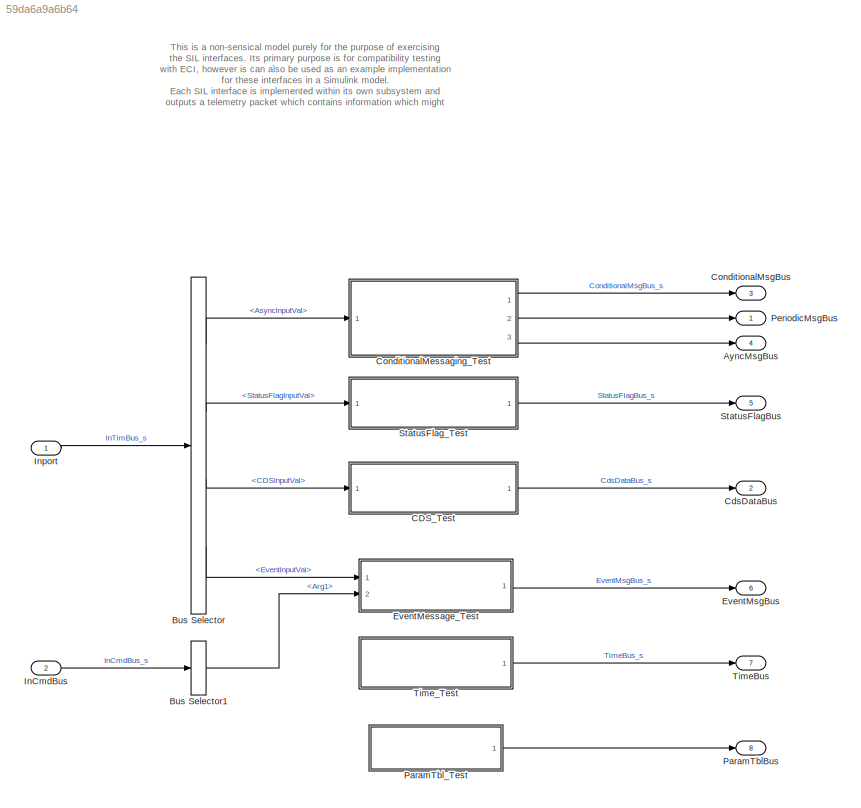
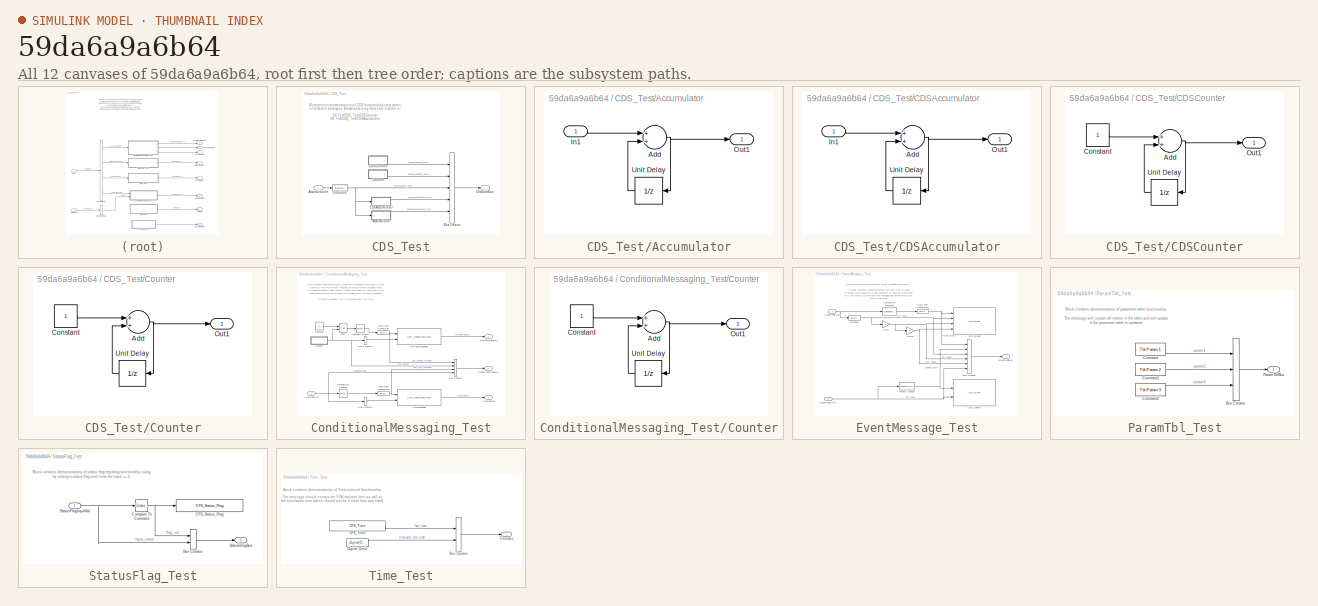
[diagram: thumbnail index - all 12 canvases of the model, root first then tree order]
MODEL slx_59da6a9a6b64
KIND model
CONFIG AbsTol = auto
CONFIG EnableMultiTasking = off
CONFIG FixedStep = SimStep
CONFIG MaxStep = auto
CONFIG MinStep = auto
CONFIG RelTol = 1e-3
CONFIG SampleTimeConstraint = Unconstrained
CONFIG Solver = FixedStepDiscrete
CONFIG SolverName = FixedStepDiscrete
CONFIG StartTime = 0.0
CONFIG StopTime = 10.0
BLOCK [Outport] AyncMsgBus
  IconDisplay = Port number
  OutDataTypeStr = Bus: AyncMsgBus
  Port = 4
BLOCK [BusSelector] Bus Selector
  OutputAsBus = off
  OutputSignals = AsyncInputVal,StatusFlagInputVal,CDSInputVal,EventInputVal
  Ports = [1, 4]
BLOCK [BusSelector] Bus Selector1
  OutputAsBus = off
  OutputSignals = Arg1
  Ports = [1, 1]
BLOCK [SubSystem] CDS_Test
  Ports = [1, 1]
  RequestExecContextInheritance = off
BLOCK [SubSystem] CDS_Test/Accumulator
  Ports = [1, 1]
  RequestExecContextInheritance = off
BLOCK [Sum] CDS_Test/Accumulator/Add
  InputSameDT = off
  OutDataTypeStr = Inherit: Inherit via internal rule
  Ports = [2, 1]
  SaturateOnIntegerOverflow = off
BLOCK [Inport] CDS_Test/Accumulator/In1
  IconDisplay = Port number
BLOCK [Outport] CDS_Test/Accumulator/Out1
  IconDisplay = Port number
BLOCK [UnitDelay] CDS_Test/Accumulator/Unit Delay
  InputProcessing = Elements as channels (sample based)
  SampleTime = -1
BLOCK [Inport] CDS_Test/AccumulatorIn
  IconDisplay = Port number
BLOCK [BusCreator] CDS_Test/Bus Creator
  DisplayOption = bar
  InheritFromInputs = on
  Inputs = 5
  NonVirtualBus = on
  OutDataTypeStr = Bus: CdsDataBus
  Ports = [5, 1]
BLOCK [SubSystem] CDS_Test/CDSAccumulator
  Ports = [1, 1]
  RequestExecContextInheritance = off
BLOCK [Sum] CDS_Test/CDSAccumulator/Add
  InputSameDT = off
  OutDataTypeStr = Inherit: Inherit via internal rule
  Ports = [2, 1]
  SaturateOnIntegerOverflow = off
BLOCK [Inport] CDS_Test/CDSAccumulator/In1
  IconDisplay = Port number
BLOCK [Outport] CDS_Test/CDSAccumulator/Out1
  IconDisplay = Port number
BLOCK [UnitDelay] CDS_Test/CDSAccumulator/Unit Delay
  InputProcessing = Elements as channels (sample based)
  SampleTime = -1
  StateMustResolveToSignalObject = on
  StateName = double_accumulator_state
BLOCK [SubSystem] CDS_Test/CDSCounter
  Ports = [0, 1]
  RequestExecContextInheritance = off
BLOCK [Sum] CDS_Test/CDSCounter/Add
  InputSameDT = off
  OutDataTypeStr = Inherit: Inherit via internal rule
  Ports = [2, 1]
  SaturateOnIntegerOverflow = off
BLOCK [Constant] CDS_Test/CDSCounter/Constant
  OutDataTypeStr = uint8
BLOCK [Outport] CDS_Test/CDSCounter/Out1
  IconDisplay = Port number
BLOCK [UnitDelay] CDS_Test/CDSCounter/Unit Delay
  InputProcessing = Elements as channels (sample based)
  SampleTime = -1
  StateMustResolveToSignalObject = on
  StateName = uint8_counter_state
BLOCK [Outport] CDS_Test/CdsDataBus
  IconDisplay = Port number
  OutDataTypeStr = Bus: CdsDataBus
BLOCK [SubSystem] CDS_Test/Counter
  Ports = [0, 1]
  RequestExecContextInheritance = off
BLOCK [Sum] CDS_Test/Counter/Add
  InputSameDT = off
  OutDataTypeStr = Inherit: Inherit via internal rule
  Ports = [2, 1]
  SaturateOnIntegerOverflow = off
BLOCK [Constant] CDS_Test/Counter/Constant
  OutDataTypeStr = uint8
BLOCK [Outport] CDS_Test/Counter/Out1
  IconDisplay = Port number
BLOCK [UnitDelay] CDS_Test/Counter/Unit Delay
  InputProcessing = Elements as channels (sample based)
  SampleTime = -1
BLOCK [DataTypeConversion] CDS_Test/toDouble
  OutDataTypeStr = double
  RndMeth = Floor
  SaturateOnIntegerOverflow = off
BLOCK [Outport] CdsDataBus
  IconDisplay = Port number
  OutDataTypeStr = Bus: CdsDataBus
  Port = 2
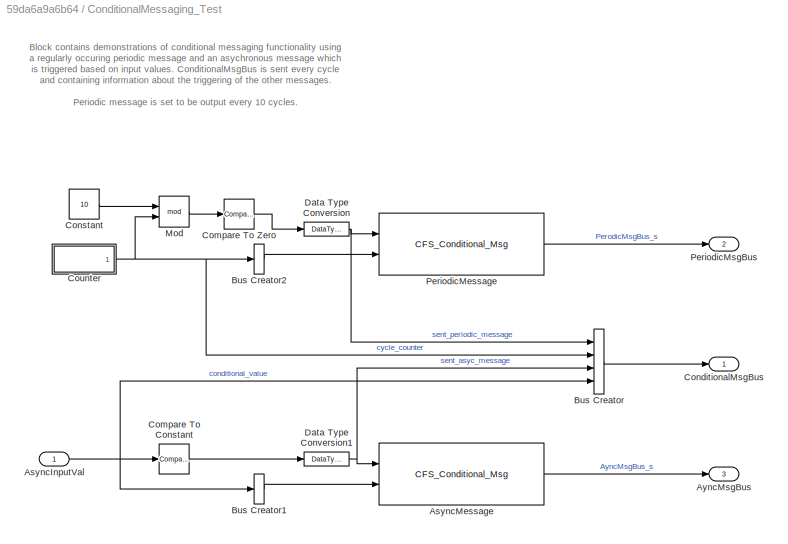
BLOCK [SubSystem] ConditionalMessaging_Test
  Ports = [1, 3]
  RequestExecContextInheritance = off
BLOCK [Inport] ConditionalMessaging_Test/AsyncInputVal
  IconDisplay = Port number
  OutDataTypeStr = uint8
BLOCK [Reference] ConditionalMessaging_Test/AsyncMessage  REF=cfs_library/CFS_Conditional_Msg
  Ports = [2, 1]
  SourceBlock = cfs_library/CFS_Conditional_Msg
  SourceProductName = CFS Blockset
  SourceType = SIL cFS Conditional Message
BLOCK [Outport] ConditionalMessaging_Test/AyncMsgBus
  IconDisplay = Port number
  Port = 3
BLOCK [BusCreator] ConditionalMessaging_Test/Bus Creator
  DisplayOption = bar
  InheritFromInputs = on
  Inputs = 4
  NonVirtualBus = on
  OutDataTypeStr = Bus: ConditionalMsgBus
  Ports = [4, 1]
BLOCK [BusCreator] ConditionalMessaging_Test/Bus Creator1
  DisplayOption = bar
  InheritFromInputs = on
  Inputs = 1
  NonVirtualBus = on
  OutDataTypeStr = Bus: AyncMsgBus
  Ports = [1, 1]
BLOCK [BusCreator] ConditionalMessaging_Test/Bus Creator2
  DisplayOption = bar
  InheritFromInputs = on
  Inputs = 1
  NonVirtualBus = on
  OutDataTypeStr = Bus: PeriodicMsgBus
  Ports = [1, 1]
BLOCK [Reference] ConditionalMessaging_Test/Compare To Constant  REF=simulink/Logic and Bit
Operations/Compare
To Constant
  Ports = [1, 1]
  SourceBlock = simulink/Logic and Bit\nOperations/Compare\nTo Constant
  SourceProductBaseCode = SL
  SourceProductName = Simulink
  SourceType = Compare To Constant
BLOCK [Reference] ConditionalMessaging_Test/Compare To Zero  REF=simulink/Logic and Bit
Operations/Compare
To Zero
  Ports = [1, 1]
  SourceBlock = simulink/Logic and Bit\nOperations/Compare\nTo Zero
  SourceProductBaseCode = SL
  SourceProductName = Simulink
  SourceType = Compare To Zero
BLOCK [Outport] ConditionalMessaging_Test/ConditionalMsgBus
  IconDisplay = Port number
BLOCK [Constant] ConditionalMessaging_Test/Constant
  OutDataTypeStr = uint8
  Value = 10
BLOCK [SubSystem] ConditionalMessaging_Test/Counter
  Ports = [0, 1]
  RequestExecContextInheritance = off
BLOCK [Sum] ConditionalMessaging_Test/Counter/Add
  InputSameDT = off
  OutDataTypeStr = Inherit: Inherit via internal rule
  Ports = [2, 1]
  SaturateOnIntegerOverflow = off
BLOCK [Constant] ConditionalMessaging_Test/Counter/Constant
  OutDataTypeStr = uint8
BLOCK [Outport] ConditionalMessaging_Test/Counter/Out1
  IconDisplay = Port number
BLOCK [UnitDelay] ConditionalMessaging_Test/Counter/Unit Delay
  InputProcessing = Elements as channels (sample based)
  SampleTime = -1
BLOCK [DataTypeConversion] ConditionalMessaging_Test/Data Type Conversion
  OutDataTypeStr = boolean
  RndMeth = Floor
  SaturateOnIntegerOverflow = off
BLOCK [DataTypeConversion] ConditionalMessaging_Test/Data Type Conversion1
  OutDataTypeStr = boolean
  RndMeth = Floor
  SaturateOnIntegerOverflow = off
BLOCK [Math] ConditionalMessaging_Test/Mod
  Operator = mod
  Ports = [2, 1]
BLOCK [Reference] ConditionalMessaging_Test/PeriodicMessage  REF=cfs_library/CFS_Conditional_Msg
  Ports = [2, 1]
  SourceBlock = cfs_library/CFS_Conditional_Msg
  SourceProductName = CFS Blockset
  SourceType = SIL cFS Conditional Message
BLOCK [Outport] ConditionalMessaging_Test/PeriodicMsgBus
  IconDisplay = Port number
  Port = 2
BLOCK [Outport] ConditionalMsgBus
  IconDisplay = Port number
  OutDataTypeStr = Bus: ConditionalMsgBus
  Port = 3
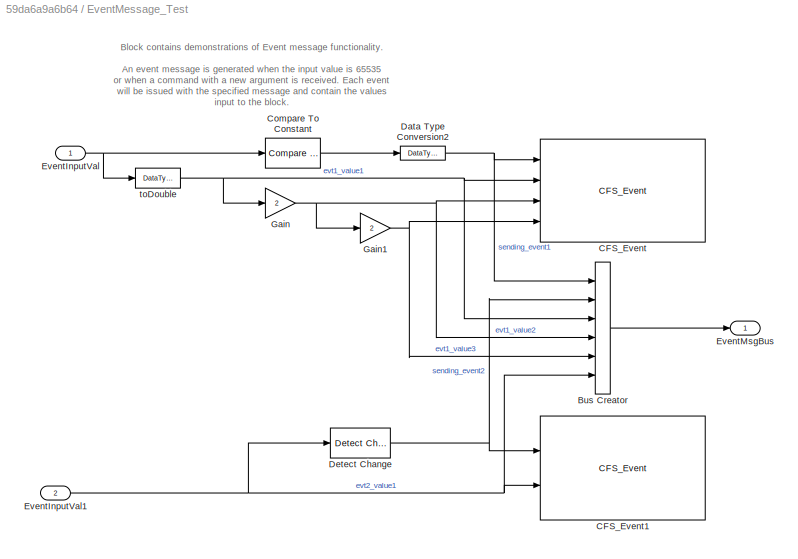
BLOCK [SubSystem] EventMessage_Test
  Ports = [2, 1]
  RequestExecContextInheritance = off
BLOCK [BusCreator] EventMessage_Test/Bus Creator
  DisplayOption = bar
  InheritFromInputs = on
  Inputs = 6
  NonVirtualBus = on
  OutDataTypeStr = Bus: EventMsgBus
  Ports = [6, 1]
BLOCK [Reference] EventMessage_Test/CFS_Event  REF=cfs_library/CFS_Event
  Ports = [4]
  SourceBlock = cfs_library/CFS_Event
  SourceProductName = CFS Blockset
BLOCK [Reference] EventMessage_Test/CFS_Event1  REF=cfs_library/CFS_Event
  Ports = [2]
  SourceBlock = cfs_library/CFS_Event
  SourceProductName = CFS Blockset
BLOCK [Reference] EventMessage_Test/Compare To Constant  REF=simulink/Logic and Bit
Operations/Compare
To Constant
  Ports = [1, 1]
  SourceBlock = simulink/Logic and Bit\nOperations/Compare\nTo Constant
  SourceProductBaseCode = SL
  SourceProductName = Simulink
  SourceType = Compare To Constant
BLOCK [DataTypeConversion] EventMessage_Test/Data Type Conversion2
  OutDataTypeStr = boolean
  RndMeth = Floor
  SaturateOnIntegerOverflow = off
BLOCK [Reference] EventMessage_Test/Detect Change  REF=simulink/Logic and Bit
Operations/Detect
Change
  Ports = [1, 1]
  SourceBlock = simulink/Logic and Bit\nOperations/Detect\nChange
  SourceProductBaseCode = SL
  SourceProductName = Simulink
  SourceType = Detect Change
BLOCK [Inport] EventMessage_Test/EventInputVal
  IconDisplay = Port number
BLOCK [Inport] EventMessage_Test/EventInputVal1
  IconDisplay = Port number
  Port = 2
BLOCK [Outport] EventMessage_Test/EventMsgBus
  IconDisplay = Port number
BLOCK [Gain] EventMessage_Test/Gain
  Gain = 2
  OutDataTypeStr = Inherit: Inherit via internal rule
  ParamDataTypeStr = Inherit: Inherit via internal rule
  SaturateOnIntegerOverflow = off
BLOCK [Gain] EventMessage_Test/Gain1
  Gain = 2
  OutDataTypeStr = Inherit: Inherit via internal rule
  ParamDataTypeStr = Inherit: Inherit via internal rule
  SaturateOnIntegerOverflow = off
BLOCK [DataTypeConversion] EventMessage_Test/toDouble
  OutDataTypeStr = double
  RndMeth = Floor
  SaturateOnIntegerOverflow = off
BLOCK [Outport] EventMsgBus
  IconDisplay = Port number
  OutDataTypeStr = Bus: EventMsgBus
  Port = 6
BLOCK [Inport] InCmdBus
  BusOutputAsStruct = on
  IconDisplay = Port number
  Interpolate = off
  OutDataTypeStr = Bus: InCmdBus
  Port = 2
BLOCK [Inport] Inport
  BusOutputAsStruct = on
  IconDisplay = Port number
  Interpolate = off
  OutDataTypeStr = Bus: InTlmBus
BLOCK [Outport] ParamTblBus
  IconDisplay = Port number
  OutDataTypeStr = Bus: ParamTblBus
  Port = 8
BLOCK [SubSystem] ParamTbl_Test
  Ports = [0, 1]
  RequestExecContextInheritance = off
BLOCK [BusCreator] ParamTbl_Test/Bus Creator
  DisplayOption = bar
  InheritFromInputs = on
  Inputs = 3
  NonVirtualBus = on
  OutDataTypeStr = Bus: ParamTblBus
  Ports = [3, 1]
BLOCK [Constant] ParamTbl_Test/Constant
  Value = Tbl.Param1
BLOCK [Constant] ParamTbl_Test/Constant1
  Value = Tbl.Param2
BLOCK [Constant] ParamTbl_Test/Constant2
  Value = Tbl.Param3
BLOCK [Outport] ParamTbl_Test/ParamTblBus
  IconDisplay = Port number
  OutDataTypeStr = Bus: ParamTblBus
BLOCK [Outport] PeriodicMsgBus
  IconDisplay = Port number
  OutDataTypeStr = Bus: PeriodicMsgBus
BLOCK [Outport] StatusFlagBus
  IconDisplay = Port number
  OutDataTypeStr = Bus: StatusFlagBus
  Port = 5
BLOCK [SubSystem] StatusFlag_Test
  Ports = [1, 1]
  RequestExecContextInheritance = off
BLOCK [BusCreator] StatusFlag_Test/Bus Creator
  DisplayOption = bar
  InheritFromInputs = on
  Inputs = 2
  NonVirtualBus = on
  OutDataTypeStr = Bus: StatusFlagBus
  Ports = [2, 1]
BLOCK [Reference] StatusFlag_Test/CFS_Status_Flag  REF=cfs_library/CFS_Status_Flag
  Ports = [1]
  SourceBlock = cfs_library/CFS_Status_Flag
  SourceProductName = CFS Blockset
  SourceType = SIL cFS Status Flag
BLOCK [Reference] StatusFlag_Test/Compare To Constant  REF=simulink/Logic and Bit
Operations/Compare
To Constant
  Ports = [1, 1]
  SourceBlock = simulink/Logic and Bit\nOperations/Compare\nTo Constant
  SourceProductBaseCode = SL
  SourceProductName = Simulink
  SourceType = Compare To Constant
BLOCK [Outport] StatusFlag_Test/StatusFlagBus
  IconDisplay = Port number
BLOCK [Inport] StatusFlag_Test/StatusFlagInputVal
  IconDisplay = Port number
  OutDataTypeStr = uint8
BLOCK [Outport] TimeBus
  IconDisplay = Port number
  OutDataTypeStr = Bus: TimeBus
  Port = 7
BLOCK [SubSystem] Time_Test
  Ports = [0, 1]
  RequestExecContextInheritance = off
BLOCK [BusCreator] Time_Test/Bus Creator
  DisplayOption = bar
  InheritFromInputs = on
  Inputs = 2
  NonVirtualBus = on
  OutDataTypeStr = Bus: TimeBus
  Ports = [2, 1]
BLOCK [Reference] Time_Test/CFS_Time  REF=cfs_library/CFS_Time
  Ports = [0, 1]
  SourceBlock = cfs_library/CFS_Time
  SourceProductName = CFS Blockset
BLOCK [DigitalClock] Time_Test/Digital Clock
  SampleTime = SimStep
BLOCK [Outport] Time_Test/TimeBus
  IconDisplay = Port number
ANNOTATION (root): This is a non-sensical model purely for the purpose of exercising the SIL interfaces. Its primary purpose is for compatibility testing with ECI, however is can also be used as an example implementation for these interfaces in a Simulink model. Each SIL interface is implemented within its own subsystem and outputs a telemetry packet which contains information which might useful for verifying the fu...<+251ch>
ANNOTATION CDS_Test: Block contains demonstrations of CDS functionality using states of different datatypes. Blocks containing states are located in: SILTest/CDS_Test/CDSCounter SILTest/CDS_Test/CDSAccumulator The other blocks use default states which will not save their data across a reset. Across a reset it should be observed that the values using CDS states maintain their values whereas the others reset to their in...<+12ch>
ANNOTATION ConditionalMessaging_Test: Block contains demonstrations of conditional messaging functionality using a regularly occuring periodic message and an asychronous message which is triggered based on input values. ConditionalMsgBus is sent every cycle and containing information about the triggering of the other messages. Periodic message is set to be output every 10 cycles. Asynchronous message is set to be output every time the...<+12ch>
ANNOTATION EventMessage_Test: Block contains demonstrations of Event message functionality. An event message is generated when the input value is 65535 or when a command with a new argument is received. Each event will be issued with the specified message and contain the values input to the block.
ANNOTATION ParamTbl_Test: Block contains demonstrations of parameter table functionality. The message will contain all values in the table and will update if the parameter table is updated.
ANNOTATION StatusFlag_Test: Block contains demonstrations of status flag reporting functionality using by setting a status flag each time the input == 4.
ANNOTATION Time_Test: Block contains demonstrations of Time retrieval functionality. The message should contain the FSW-reported time as well as the simulation time (which should just be a timer from app start).
LINE Bus Selector1:1 -> EventMessage_Test:2
LINE Bus Selector:1 -> ConditionalMessaging_Test:1
LINE Bus Selector:2 -> StatusFlag_Test:1
LINE Bus Selector:3 -> CDS_Test:1
LINE Bus Selector:4 -> EventMessage_Test:1
NET CDS_Test/Accumulator/Add:1 -> CDS_Test/Accumulator/Out1:1, CDS_Test/Accumulator/Unit Delay:1
LINE CDS_Test/Accumulator/In1:1 -> CDS_Test/Accumulator/Add:1
LINE CDS_Test/Accumulator/Unit Delay:1 -> CDS_Test/Accumulator/Add:2
LINE CDS_Test/Accumulator:1 -> CDS_Test/Bus Creator:5
LINE CDS_Test/AccumulatorIn:1 -> CDS_Test/toDouble:1
LINE CDS_Test/Bus Creator:1 -> CDS_Test/CdsDataBus:1
NET CDS_Test/CDSAccumulator/Add:1 -> CDS_Test/CDSAccumulator/Out1:1, CDS_Test/CDSAccumulator/Unit Delay:1
LINE CDS_Test/CDSAccumulator/In1:1 -> CDS_Test/CDSAccumulator/Add:1
LINE CDS_Test/CDSAccumulator/Unit Delay:1 -> CDS_Test/CDSAccumulator/Add:2
LINE CDS_Test/CDSAccumulator:1 -> CDS_Test/Bus Creator:4
NET CDS_Test/CDSCounter/Add:1 -> CDS_Test/CDSCounter/Out1:1, CDS_Test/CDSCounter/Unit Delay:1
LINE CDS_Test/CDSCounter/Constant:1 -> CDS_Test/CDSCounter/Add:1
LINE CDS_Test/CDSCounter/Unit Delay:1 -> CDS_Test/CDSCounter/Add:2
LINE CDS_Test/CDSCounter:1 -> CDS_Test/Bus Creator:1
NET CDS_Test/Counter/Add:1 -> CDS_Test/Counter/Out1:1, CDS_Test/Counter/Unit Delay:1
LINE CDS_Test/Counter/Constant:1 -> CDS_Test/Counter/Add:1
LINE CDS_Test/Counter/Unit Delay:1 -> CDS_Test/Counter/Add:2
LINE CDS_Test/Counter:1 -> CDS_Test/Bus Creator:2
NET CDS_Test/toDouble:1 -> CDS_Test/Accumulator:1, CDS_Test/Bus Creator:3, CDS_Test/CDSAccumulator:1
LINE CDS_Test:1 -> CdsDataBus:1
NET ConditionalMessaging_Test/AsyncInputVal:1 -> ConditionalMessaging_Test/Bus Creator1:1, ConditionalMessaging_Test/Bus Creator:4, ConditionalMessaging_Test/Compare To Constant:1
LINE ConditionalMessaging_Test/AsyncMessage:1 -> ConditionalMessaging_Test/AyncMsgBus:1
LINE ConditionalMessaging_Test/Bus Creator1:1 -> ConditionalMessaging_Test/AsyncMessage:2
LINE ConditionalMessaging_Test/Bus Creator2:1 -> ConditionalMessaging_Test/PeriodicMessage:2
LINE ConditionalMessaging_Test/Bus Creator:1 -> ConditionalMessaging_Test/ConditionalMsgBus:1
LINE ConditionalMessaging_Test/Compare To Constant:1 -> ConditionalMessaging_Test/Data Type Conversion1:1
LINE ConditionalMessaging_Test/Compare To Zero:1 -> ConditionalMessaging_Test/Data Type Conversion:1
LINE ConditionalMessaging_Test/Constant:1 -> ConditionalMessaging_Test/Mod:1
NET ConditionalMessaging_Test/Counter/Add:1 -> ConditionalMessaging_Test/Counter/Out1:1, ConditionalMessaging_Test/Counter/Unit Delay:1
LINE ConditionalMessaging_Test/Counter/Constant:1 -> ConditionalMessaging_Test/Counter/Add:1
LINE ConditionalMessaging_Test/Counter/Unit Delay:1 -> ConditionalMessaging_Test/Counter/Add:2
NET ConditionalMessaging_Test/Counter:1 -> ConditionalMessaging_Test/Bus Creator2:1, ConditionalMessaging_Test/Bus Creator:2, ConditionalMessaging_Test/Mod:2
NET ConditionalMessaging_Test/Data Type Conversion1:1 -> ConditionalMessaging_Test/AsyncMessage:1, ConditionalMessaging_Test/Bus Creator:3
NET ConditionalMessaging_Test/Data Type Conversion:1 -> ConditionalMessaging_Test/Bus Creator:1, ConditionalMessaging_Test/PeriodicMessage:1
LINE ConditionalMessaging_Test/Mod:1 -> ConditionalMessaging_Test/Compare To Zero:1
LINE ConditionalMessaging_Test/PeriodicMessage:1 -> ConditionalMessaging_Test/PeriodicMsgBus:1
LINE ConditionalMessaging_Test:1 -> ConditionalMsgBus:1
LINE ConditionalMessaging_Test:2 -> PeriodicMsgBus:1
LINE ConditionalMessaging_Test:3 -> AyncMsgBus:1
LINE EventMessage_Test/Bus Creator:1 -> EventMessage_Test/EventMsgBus:1
LINE EventMessage_Test/Compare To Constant:1 -> EventMessage_Test/Data Type Conversion2:1
NET EventMessage_Test/Data Type Conversion2:1 -> EventMessage_Test/Bus Creator:1, EventMessage_Test/CFS_Event:1
NET EventMessage_Test/Detect Change:1 -> EventMessage_Test/Bus Creator:2, EventMessage_Test/CFS_Event1:1
NET EventMessage_Test/EventInputVal1:1 -> EventMessage_Test/Bus Creator:6, EventMessage_Test/CFS_Event1:2, EventMessage_Test/Detect Change:1
NET EventMessage_Test/EventInputVal:1 -> EventMessage_Test/Compare To Constant:1, EventMessage_Test/toDouble:1
NET EventMessage_Test/Gain1:1 -> EventMessage_Test/Bus Creator:5, EventMessage_Test/CFS_Event:4
NET EventMessage_Test/Gain:1 -> EventMessage_Test/Bus Creator:4, EventMessage_Test/CFS_Event:3, EventMessage_Test/Gain1:1
NET EventMessage_Test/toDouble:1 -> EventMessage_Test/Bus Creator:3, EventMessage_Test/CFS_Event:2, EventMessage_Test/Gain:1
LINE EventMessage_Test:1 -> EventMsgBus:1
LINE InCmdBus:1 -> Bus Selector1:1
LINE Inport:1 -> Bus Selector:1
LINE ParamTbl_Test/Bus Creator:1 -> ParamTbl_Test/ParamTblBus:1
LINE ParamTbl_Test/Constant1:1 -> ParamTbl_Test/Bus Creator:2
LINE ParamTbl_Test/Constant2:1 -> ParamTbl_Test/Bus Creator:3
LINE ParamTbl_Test/Constant:1 -> ParamTbl_Test/Bus Creator:1
LINE ParamTbl_Test:1 -> ParamTblBus:1
LINE StatusFlag_Test/Bus Creator:1 -> StatusFlag_Test/StatusFlagBus:1
NET StatusFlag_Test/Compare To Constant:1 -> StatusFlag_Test/Bus Creator:1, StatusFlag_Test/CFS_Status_Flag:1
NET StatusFlag_Test/StatusFlagInputVal:1 -> StatusFlag_Test/Bus Creator:2, StatusFlag_Test/Compare To Constant:1
LINE StatusFlag_Test:1 -> StatusFlagBus:1
LINE Time_Test/Bus Creator:1 -> Time_Test/TimeBus:1
LINE Time_Test/CFS_Time:1 -> Time_Test/Bus Creator:1
LINE Time_Test/Digital Clock:1 -> Time_Test/Bus Creator:2
LINE Time_Test:1 -> TimeBus:1
note: NET lines group one-source signal fan-out (src -> all destinations, sorted); 1:1 wires keep LINE
